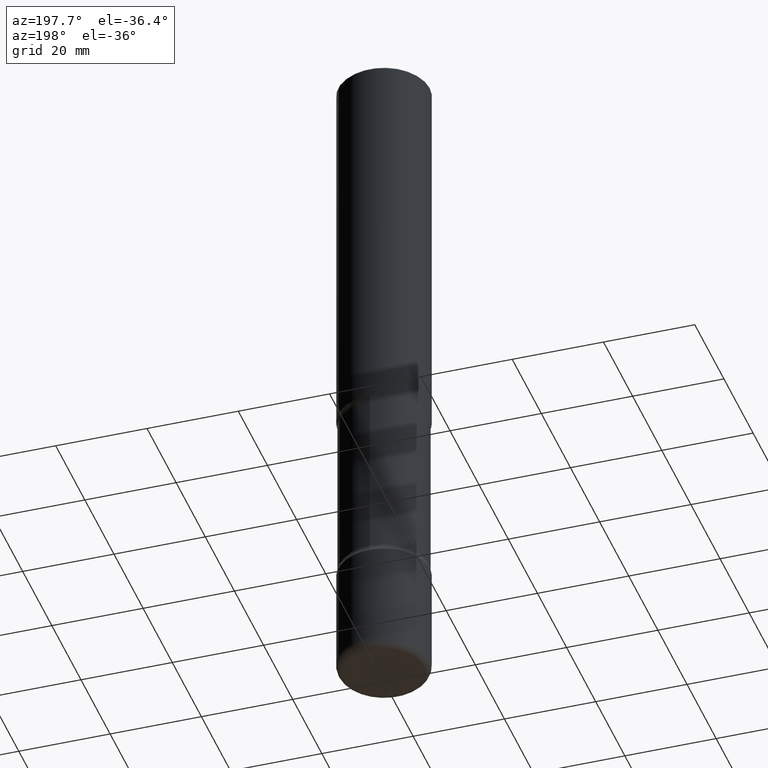
[diagram: clean part render]
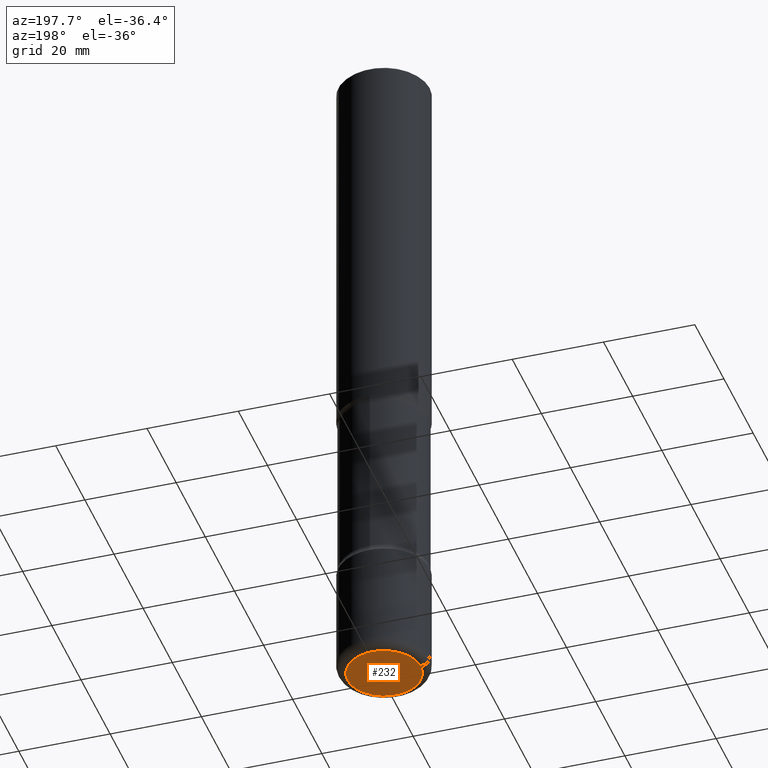
[diagram: same view with one face highlighted and labeled with its STEP entity id]
A machine part, auxiliary view. The second image highlights one B-rep face of the part: STEP entity #232.
In plain terms, the highlighted planar face has unit normal (0, -0, -1).
Its self-contained STEP definition (entity closure, byte-faithful):
#25 = CARTESIAN_POINT ( 'NONE',  ( 1.444171603492631822E-28, -2.061894304653818881E-14, -5.905499999999998195 ) ) ;
#59 = CARTESIAN_POINT ( 'NONE',  ( 0.3150000000000001688, -2.281857629000936535E-14, -5.905499999999998195 ) ) ;
#68 = DIRECTION ( 'NONE',  ( 2.438088387897960049E-29, -3.491481338843145188E-15, -1.000000000000000000 ) ) ;
#92 = VERTEX_POINT ( 'NONE', #331 ) ;
#102 = PLANE ( 'NONE',  #359 ) ;
#105 = CARTESIAN_POINT ( 'NONE',  ( 1.444171603492631822E-28, -2.061894304653818881E-14, -5.905499999999998195 ) ) ;
#116 = ORIENTED_EDGE ( 'NONE', *, *, #190, .F. ) ;
#190 = EDGE_CURVE ( 'NONE', #92, #399, #406, .T. ) ;
#232 = ADVANCED_FACE ( 'NONE', ( #335 ), #102, .T. ) ;
#243 = AXIS2_PLACEMENT_3D ( 'NONE', #105, #290, #275 ) ;
#255 = CARTESIAN_POINT ( 'NONE',  ( 1.444171603492631822E-28, -2.061894304653818881E-14, -5.905499999999998195 ) ) ;
#275 = DIRECTION ( 'NONE',  ( 1.000000000000000000, -6.982962677686270655E-15, 0.000000000000000000 ) ) ;
#290 = DIRECTION ( 'NONE',  ( -2.445468806185136597E-29, 3.491481338843145583E-15, 1.000000000000000000 ) ) ;
#311 = EDGE_LOOP ( 'NONE', ( #433, #116 ) ) ;
#331 = CARTESIAN_POINT ( 'NONE',  ( -0.3150000000000001688, -1.796374507168879596E-14, -5.905499999999998195 ) ) ;
#335 = FACE_OUTER_BOUND ( 'NONE', #311, .T. ) ;
#359 = AXIS2_PLACEMENT_3D ( 'NONE', #25, #68, #538 ) ;
#399 = VERTEX_POINT ( 'NONE', #59 ) ;
#406 = CIRCLE ( 'NONE', #243, 0.3150000000000001688 ) ;
#432 = EDGE_CURVE ( 'NONE', #399, #92, #523, .T. ) ;
#433 = ORIENTED_EDGE ( 'NONE', *, *, #432, .F. ) ;
#439 = AXIS2_PLACEMENT_3D ( 'NONE', #255, #508, #521 ) ;
#508 = DIRECTION ( 'NONE',  ( -2.445468806185136597E-29, 3.491481338843145583E-15, 1.000000000000000000 ) ) ;
#521 = DIRECTION ( 'NONE',  ( 1.000000000000000000, -6.982962677686270655E-15, 0.000000000000000000 ) ) ;
#523 = CIRCLE ( 'NONE', #439, 0.3150000000000001688 ) ;
#538 = DIRECTION ( 'NONE',  ( -1.000000000000000000, 6.982962677686265922E-15, -4.876176775795935793E-29 ) ) ;